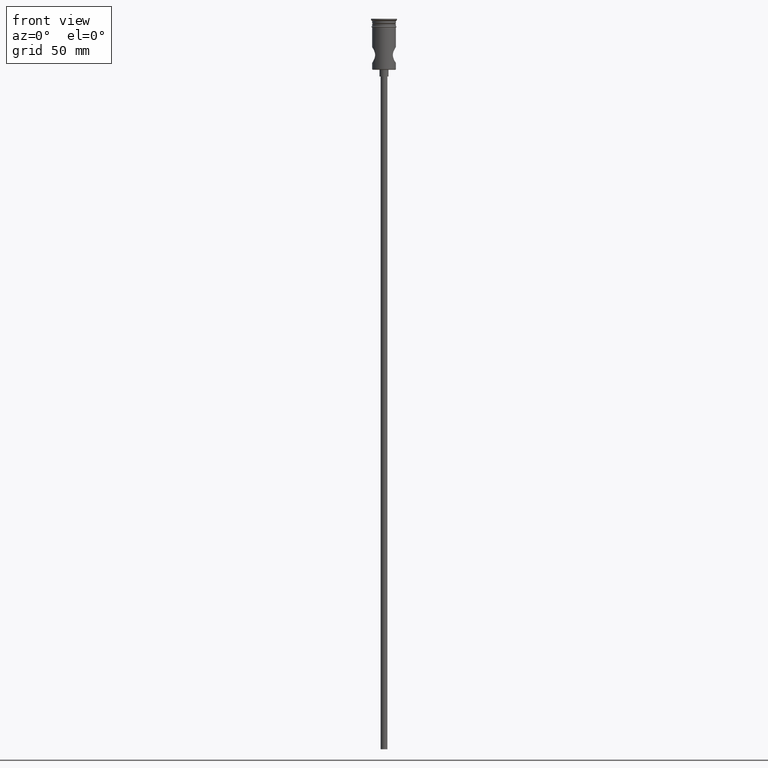
[diagram: clean part render]
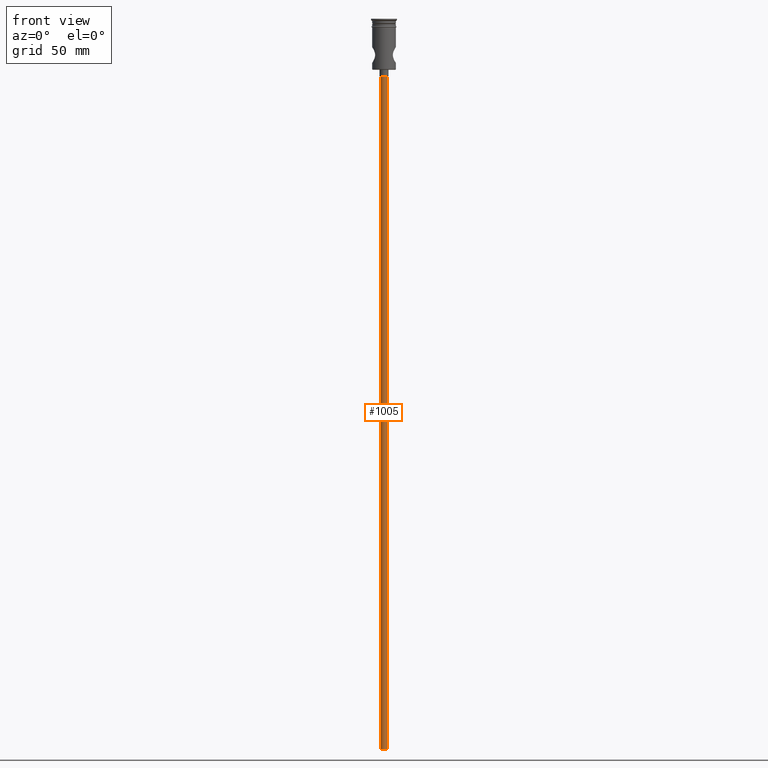
[diagram: same view with one face highlighted and labeled with its STEP entity id]
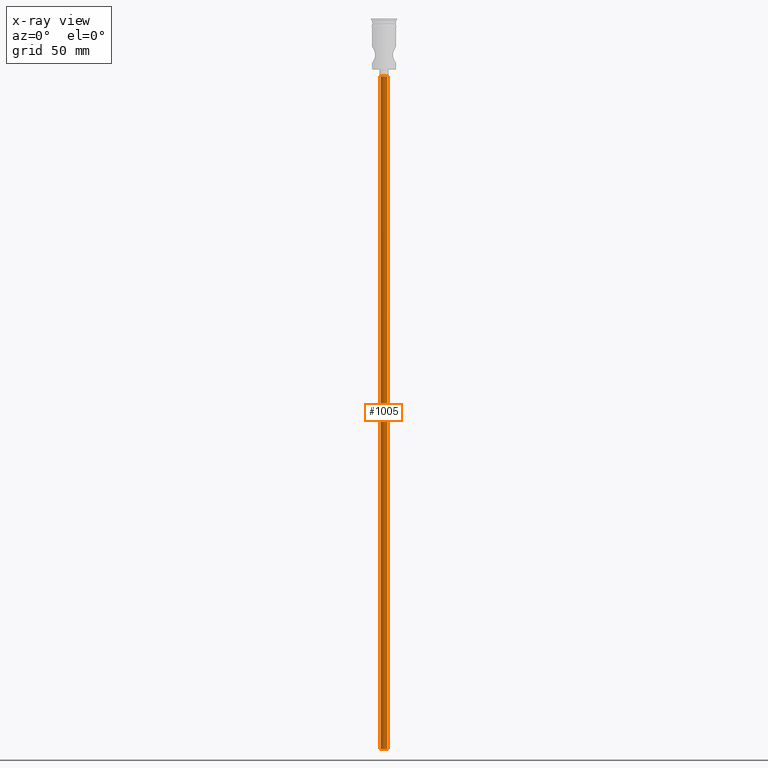
[diagram: x-ray of the same camera — body ghosted, the highlighted face saturated]
A machine part, front view. The second image highlights one B-rep face of the part: STEP entity #1005.
The next image is the same camera in x-ray: the body ghosted, the highlighted face saturated — about 0% of this face is hidden behind the body in this view.
In plain terms, the highlighted cylindrical surface (edge-blend (fillet) strip) has radius 1.5 mm, axis along (-0, -0, 1).
Its self-contained STEP definition (entity closure, byte-faithful):
#32 = EDGE_CURVE ( 'NONE', #981, #147, #776, .T. ) ;
#38 = EDGE_LOOP ( 'NONE', ( #337, #262, #1263, #400 ) ) ;
#48 = DIRECTION ( 'NONE',  ( -0.000000000000000000, -0.000000000000000000, 1.000000000000000000 ) ) ;
#147 = VERTEX_POINT ( 'NONE', #921 ) ;
#176 = CYLINDRICAL_SURFACE ( 'NONE', #670, 1.500000000000000222 ) ;
#196 = EDGE_CURVE ( 'NONE', #813, #147, #1252, .T. ) ;
#243 = EDGE_CURVE ( 'NONE', #1055, #813, #1053, .T. ) ;
#244 = CARTESIAN_POINT ( 'NONE',  ( 0.000000000000000000, 0.000000000000000000, -25.50000000000000000 ) ) ;
#249 = AXIS2_PLACEMENT_3D ( 'NONE', #1195, #1201, #749 ) ;
#262 = ORIENTED_EDGE ( 'NONE', *, *, #289, .F. ) ;
#268 = CARTESIAN_POINT ( 'NONE',  ( 0.000000000000000000, 0.000000000000000000, -322.5000000000000000 ) ) ;
#286 = DIRECTION ( 'NONE',  ( 1.000000000000000000, 0.000000000000000000, 0.000000000000000000 ) ) ;
#289 = EDGE_CURVE ( 'NONE', #1055, #981, #475, .T. ) ;
#337 = ORIENTED_EDGE ( 'NONE', *, *, #32, .F. ) ;
#400 = ORIENTED_EDGE ( 'NONE', *, *, #196, .T. ) ;
#475 = CIRCLE ( 'NONE', #249, 1.500000000000000222 ) ;
#498 = VECTOR ( 'NONE', #1014, 1000.000000000000000 ) ;
#543 = AXIS2_PLACEMENT_3D ( 'NONE', #244, #1266, #937 ) ;
#670 = AXIS2_PLACEMENT_3D ( 'NONE', #268, #1394, #286 ) ;
#749 = DIRECTION ( 'NONE',  ( -1.000000000000000000, 0.000000000000000000, 0.000000000000000000 ) ) ;
#776 = LINE ( 'NONE', #782, #498 ) ;
#782 = CARTESIAN_POINT ( 'NONE',  ( -1.500000000000000222, 1.836970198721030181E-16, -322.5000000000000000 ) ) ;
#813 = VERTEX_POINT ( 'NONE', #1144 ) ;
#921 = CARTESIAN_POINT ( 'NONE',  ( -1.500000000000000222, 1.836970198721030181E-16, -25.50000000000000000 ) ) ;
#926 = VECTOR ( 'NONE', #48, 1000.000000000000000 ) ;
#937 = DIRECTION ( 'NONE',  ( -1.000000000000000000, 0.000000000000000000, 0.000000000000000000 ) ) ;
#981 = VERTEX_POINT ( 'NONE', #1038 ) ;
#1005 = ADVANCED_FACE ( 'NONE', ( #1044 ), #176, .T. ) ;
#1014 = DIRECTION ( 'NONE',  ( -0.000000000000000000, -0.000000000000000000, 1.000000000000000000 ) ) ;
#1038 = CARTESIAN_POINT ( 'NONE',  ( -1.500000000000000222, 1.836970198721030181E-16, -322.5000000000000000 ) ) ;
#1044 = FACE_OUTER_BOUND ( 'NONE', #38, .T. ) ;
#1053 = LINE ( 'NONE', #1152, #926 ) ;
#1055 = VERTEX_POINT ( 'NONE', #1211 ) ;
#1144 = CARTESIAN_POINT ( 'NONE',  ( 1.500000000000000222, 0.000000000000000000, -25.50000000000000000 ) ) ;
#1152 = CARTESIAN_POINT ( 'NONE',  ( 1.500000000000000222, 0.000000000000000000, -322.5000000000000000 ) ) ;
#1195 = CARTESIAN_POINT ( 'NONE',  ( 0.000000000000000000, 0.000000000000000000, -322.5000000000000000 ) ) ;
#1201 = DIRECTION ( 'NONE',  ( 0.000000000000000000, 0.000000000000000000, -1.000000000000000000 ) ) ;
#1211 = CARTESIAN_POINT ( 'NONE',  ( 1.500000000000000222, 0.000000000000000000, -322.5000000000000000 ) ) ;
#1252 = CIRCLE ( 'NONE', #543, 1.500000000000000222 ) ;
#1263 = ORIENTED_EDGE ( 'NONE', *, *, #243, .T. ) ;
#1266 = DIRECTION ( 'NONE',  ( 0.000000000000000000, 0.000000000000000000, -1.000000000000000000 ) ) ;
#1394 = DIRECTION ( 'NONE',  ( -0.000000000000000000, -0.000000000000000000, 1.000000000000000000 ) ) ;